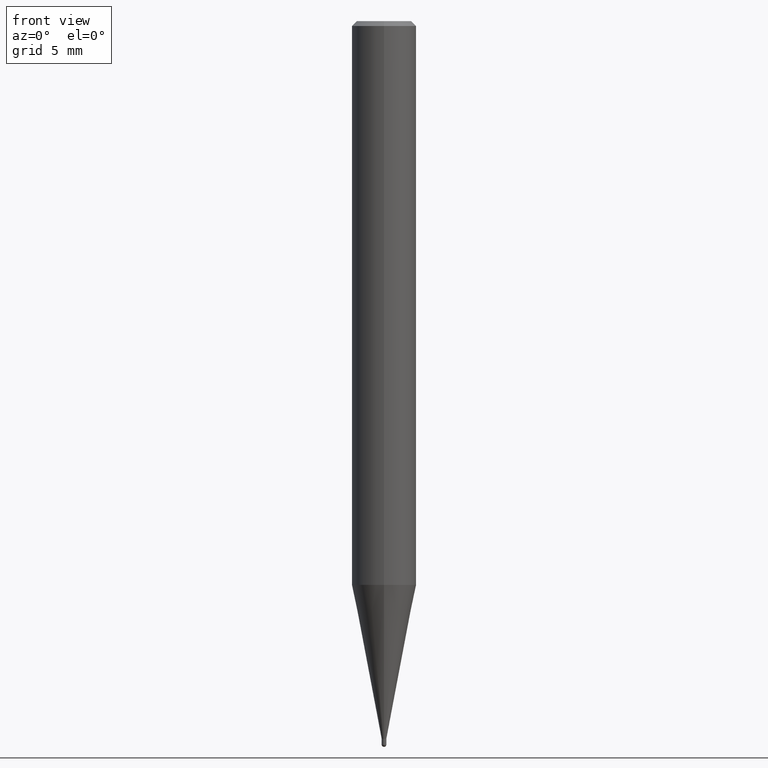
[diagram: clean part render]
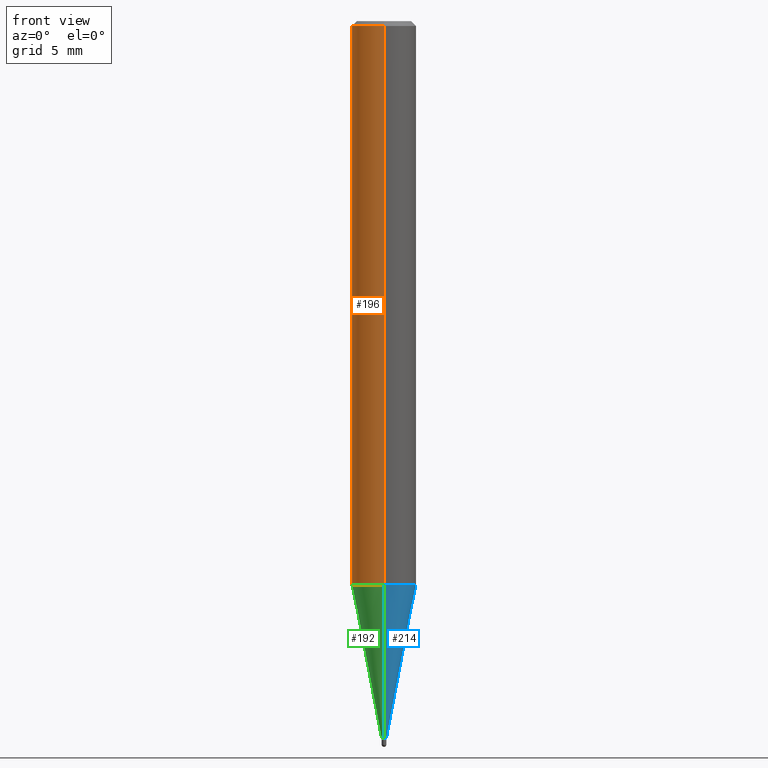
[diagram: same view with three faces highlighted in distinct colors, each labeled with its STEP entity id]
A machine part, front view with three faces highlighted in distinct colors.
Their STEP definitions:

[orange] entity #196 — the highlighted cylindrical surface (edge-blend (fillet) strip) has radius 2 mm, axis along (-0, -0, 1).
#102=EDGE_CURVE('',#194,#184,#244,.T.);
#110=VERTEX_POINT('',#253);
#130=EDGE_CURVE('',#110,#138,#275,.T.);
#138=VERTEX_POINT('',#285);
#152=EDGE_CURVE('',#194,#138,#302,.T.);
#174=EDGE_CURVE('',#184,#110,#324,.T.);
#184=VERTEX_POINT('',#337);
#194=VERTEX_POINT('',#349);
#196=ADVANCED_FACE('',(#351),#352,.T.);
#244=LINE('',#397,#398);
#253=CARTESIAN_POINT('',(0.0,2.0,-0.299999999999997));
#275=LINE('',#437,#438);
#285=CARTESIAN_POINT('',(0.0,2.0,-34.957));
#302=CIRCLE('',#469,2.0);
#324=CIRCLE('',#501,2.0);
#337=CARTESIAN_POINT('',(2.44921270764475E-016,-2.0,-0.299999999999997));
#349=CARTESIAN_POINT('',(2.44921270764475E-016,-2.0,-34.957));
#351=FACE_OUTER_BOUND('',#531,.T.);
#352=CYLINDRICAL_SURFACE('',#532,2.0);
#397=CARTESIAN_POINT('',(2.44921270764475E-016,-2.0,-17.6285));
#398=VECTOR('',#568,1.0);
#437=CARTESIAN_POINT('',(-2.44921270764475E-016,2.0,-17.6285));
#438=VECTOR('',#604,1.0);
#469=AXIS2_PLACEMENT_3D('',#641,#642,#643);
#501=AXIS2_PLACEMENT_3D('',#661,#662,#663);
#531=EDGE_LOOP('',(#704,#705,#706,#707));
#532=AXIS2_PLACEMENT_3D('',#708,#709,#710);
#568=DIRECTION('',(-0.0,-0.0,1.0));
#604=DIRECTION('',(0.0,0.0,-1.0));
#641=CARTESIAN_POINT('',(0.0,0.0,-34.957));
#642=DIRECTION('',(0.0,0.0,-1.0));
#643=DIRECTION('',(0.0,1.0,0.0));
#661=CARTESIAN_POINT('',(0.0,0.0,-0.299999999999997));
#662=DIRECTION('',(0.0,0.0,-1.0));
#663=DIRECTION('',(0.0,1.0,0.0));
#704=ORIENTED_EDGE('',*,*,#130,.T.);
#705=ORIENTED_EDGE('',*,*,#152,.F.);
#706=ORIENTED_EDGE('',*,*,#102,.T.);
#707=ORIENTED_EDGE('',*,*,#174,.T.);
#708=CARTESIAN_POINT('',(0.0,0.0,-17.6285));
#709=DIRECTION('',(-0.0,-0.0,1.0));
#710=DIRECTION('',(0.0,1.0,0.0));

[blue] entity #214 — the highlighted conical surface has half-angle 11 deg.
#96=VERTEX_POINT('',#237);
#122=VERTEX_POINT('',#267);
#124=EDGE_CURVE('',#160,#122,#269,.T.);
#146=EDGE_CURVE('',#122,#96,#295,.T.);
#150=VERTEX_POINT('',#300);
#160=VERTEX_POINT('',#310);
#172=EDGE_CURVE('',#96,#150,#322,.T.);
#202=EDGE_CURVE('',#160,#150,#359,.T.);
#214=ADVANCED_FACE('',(#371),#372,.T.);
#237=CARTESIAN_POINT('',(1.77506690986554E-017,-0.14495,-44.5));
#267=CARTESIAN_POINT('',(0.0,0.14495,-44.5));
#269=LINE('',#428,#429);
#295=CIRCLE('',#461,0.14495);
#300=CARTESIAN_POINT('',(2.44915147732706E-016,-1.99995,-34.957));
#310=CARTESIAN_POINT('',(0.0,1.99995,-34.957));
#322=LINE('',#497,#498);
#359=CIRCLE('',#542,1.99995);
#371=FACE_OUTER_BOUND('',#556,.T.);
#372=CONICAL_SURFACE('',#557,1.07245,0.19198911666217);
#428=CARTESIAN_POINT('',(-1.31332908415681E-016,1.07245,-39.7285));
#429=VECTOR('',#600,1.0);
#461=AXIS2_PLACEMENT_3D('',#632,#633,#634);
#497=CARTESIAN_POINT('',(1.31332908415681E-016,-1.07245,-39.7285));
#498=VECTOR('',#660,1.0);
#542=AXIS2_PLACEMENT_3D('',#720,#721,#722);
#556=EDGE_LOOP('',(#733,#734,#735,#736));
#557=AXIS2_PLACEMENT_3D('',#737,#738,#739);
#600=DIRECTION('',(2.33669392942694E-017,-0.190811841056793,-0.981626630299177));
#632=CARTESIAN_POINT('',(0.0,0.0,-44.5));
#633=DIRECTION('',(0.0,0.0,-1.0));
#634=DIRECTION('',(0.0,1.0,0.0));
#660=DIRECTION('',(2.33669392942694E-017,-0.190811841056793,0.981626630299177));
#720=CARTESIAN_POINT('',(0.0,0.0,-34.957));
#721=DIRECTION('',(0.0,0.0,-1.0));
#722=DIRECTION('',(0.0,1.0,0.0));
#733=ORIENTED_EDGE('',*,*,#124,.F.);
#734=ORIENTED_EDGE('',*,*,#202,.T.);
#735=ORIENTED_EDGE('',*,*,#172,.F.);
#736=ORIENTED_EDGE('',*,*,#146,.F.);
#737=CARTESIAN_POINT('',(0.0,0.0,-39.7285));
#738=DIRECTION('',(-0.0,-0.0,1.0));
#739=DIRECTION('',(0.0,1.0,0.0));

[green] entity #192 — the highlighted conical surface has half-angle 11 deg.
#96=VERTEX_POINT('',#237);
#122=VERTEX_POINT('',#267);
#124=EDGE_CURVE('',#160,#122,#269,.T.);
#150=VERTEX_POINT('',#300);
#156=EDGE_CURVE('',#96,#122,#306,.T.);
#160=VERTEX_POINT('',#310);
#164=EDGE_CURVE('',#150,#160,#314,.T.);
#172=EDGE_CURVE('',#96,#150,#322,.T.);
#192=ADVANCED_FACE('',(#346),#347,.T.);
#237=CARTESIAN_POINT('',(1.77506690986554E-017,-0.14495,-44.5));
#267=CARTESIAN_POINT('',(0.0,0.14495,-44.5));
#269=LINE('',#428,#429);
#300=CARTESIAN_POINT('',(2.44915147732706E-016,-1.99995,-34.957));
#306=CIRCLE('',#476,0.14495);
#310=CARTESIAN_POINT('',(0.0,1.99995,-34.957));
#314=CIRCLE('',#486,1.99995);
#322=LINE('',#497,#498);
#346=FACE_OUTER_BOUND('',#526,.T.);
#347=CONICAL_SURFACE('',#527,1.07245,0.19198911666217);
#428=CARTESIAN_POINT('',(-1.31332908415681E-016,1.07245,-39.7285));
#429=VECTOR('',#600,1.0);
#476=AXIS2_PLACEMENT_3D('',#645,#646,#647);
#486=AXIS2_PLACEMENT_3D('',#651,#652,#653);
#497=CARTESIAN_POINT('',(1.31332908415681E-016,-1.07245,-39.7285));
#498=VECTOR('',#660,1.0);
#526=EDGE_LOOP('',(#696,#697,#698,#699));
#527=AXIS2_PLACEMENT_3D('',#700,#701,#702);
#600=DIRECTION('',(2.33669392942694E-017,-0.190811841056793,-0.981626630299177));
#645=CARTESIAN_POINT('',(0.0,0.0,-44.5));
#646=DIRECTION('',(0.0,0.0,-1.0));
#647=DIRECTION('',(0.0,1.0,0.0));
#651=CARTESIAN_POINT('',(0.0,0.0,-34.957));
#652=DIRECTION('',(0.0,0.0,-1.0));
#653=DIRECTION('',(0.0,1.0,0.0));
#660=DIRECTION('',(2.33669392942694E-017,-0.190811841056793,0.981626630299177));
#696=ORIENTED_EDGE('',*,*,#124,.T.);
#697=ORIENTED_EDGE('',*,*,#156,.F.);
#698=ORIENTED_EDGE('',*,*,#172,.T.);
#699=ORIENTED_EDGE('',*,*,#164,.T.);
#700=CARTESIAN_POINT('',(0.0,0.0,-39.7285));
#701=DIRECTION('',(-0.0,-0.0,1.0));
#702=DIRECTION('',(0.0,1.0,0.0));